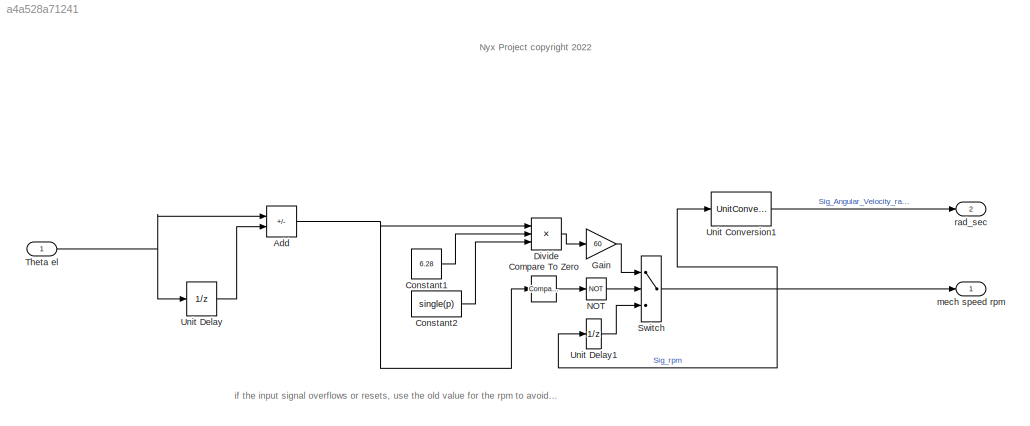
MODEL slx_a4a528a71241
KIND model
CONFIG AbsTol = auto
CONFIG EnableMultiTasking = off
CONFIG FixedStep = 1
CONFIG MaxStep = auto
CONFIG MinStep = auto
CONFIG RelTol = 1e-3
CONFIG SampleTimeConstraint = Unconstrained
CONFIG SolverName = FixedStepDiscrete
CONFIG StartTime = 0.0
CONFIG StopTime = 100
BLOCK [Sum] Add
  IconShape = rectangular
  Inputs = +-
  Ports = [2, 1]
BLOCK [Reference] Compare To Zero  REF=simulink/Logic and Bit
Operations/Compare
To Zero
  Ports = [1, 1]
  SourceBlock = simulink/Logic and Bit\nOperations/Compare\nTo Zero
  SourceType = Compare To Zero
BLOCK [Constant] Constant1
  OutDataTypeStr = single
  Value = 6.28
BLOCK [Constant] Constant2
  OutDataTypeStr = single
  Value = single(p)
BLOCK [Product] Divide
  Inputs = *//
  OutDataTypeStr = int32
  Ports = [3, 1]
BLOCK [Gain] Gain
  Gain = 60
BLOCK [Logic] NOT
  AllPortsSameDT = off
  IconShape = distinctive
  Operator = NOT
  OutDataTypeStr = boolean
  Ports = [1, 1]
BLOCK [Switch] Switch
  InputSameDT = off
  SaturateOnIntegerOverflow = off
  Threshold = 1
BLOCK [Inport] Theta el
  OutDataTypeStr = single
BLOCK [UnitConversion] Unit Conversion1
  OutputType = Inherit: Inherit via back propagation
BLOCK [UnitDelay] Unit Delay
  HasFrameUpgradeWarning = on
  SampleTime = -1
BLOCK [UnitDelay] Unit Delay1
  HasFrameUpgradeWarning = on
  SampleTime = -1
BLOCK [Outport] mech speed rpm
BLOCK [Outport] rad_sec
  OutDataTypeStr = single
  Port = 2
  PortDimensions = 1
  SamplingMode = Sample based
  SignalType = real
  Unit = rad/sec
ANNOTATION (root): Nyx Project <copyright redacted>
ANNOTATION (root): if the input signal overflows or resets, use the old value for the rpm to avoid enormous toggles.
NET Add:1 -> Compare To Zero:1, Divide:1
LINE Compare To Zero:1 -> NOT:1
LINE Constant1:1 -> Divide:2
LINE Constant2:1 -> Divide:3
LINE Divide:1 -> Gain:1
LINE Gain:1 -> Switch:1
LINE NOT:1 -> Switch:2
NET Switch:1 -> Unit Conversion1:1, Unit Delay1:1, mech speed rpm:1
NET Theta el:1 -> Add:1, Unit Delay:1
LINE Unit Conversion1:1 -> rad_sec:1
LINE Unit Delay1:1 -> Switch:3
LINE Unit Delay:1 -> Add:2
note: NET lines group one-source signal fan-out (src -> all destinations, sorted); 1:1 wires keep LINE
